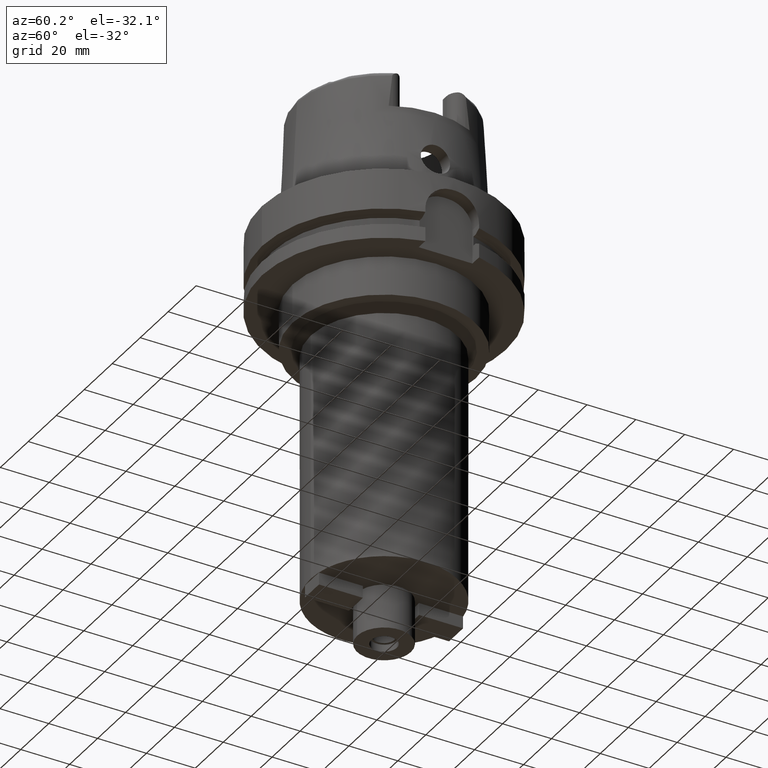
[diagram: clean part render]
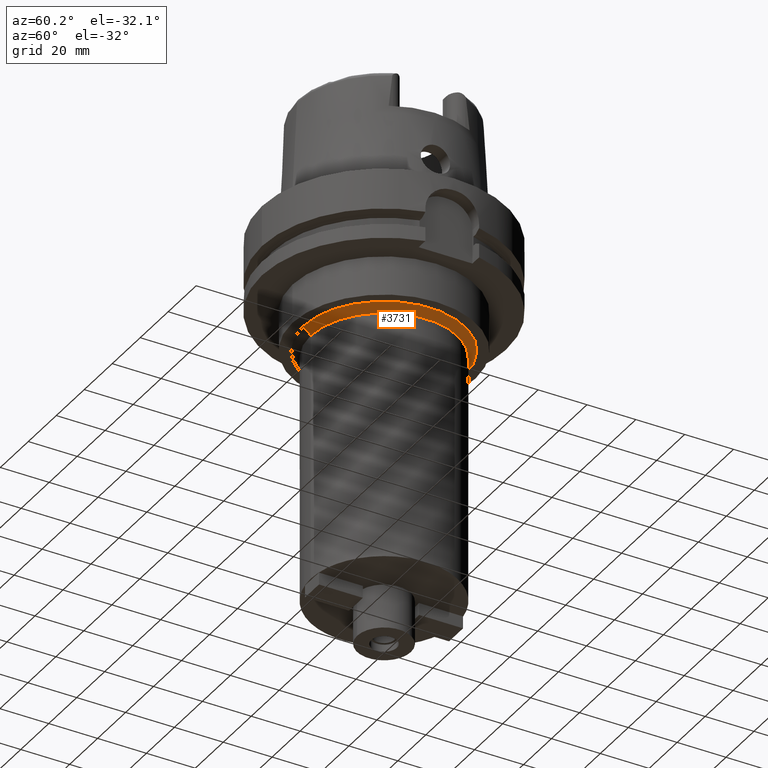
[diagram: same view with one face highlighted and labeled with its STEP entity id]
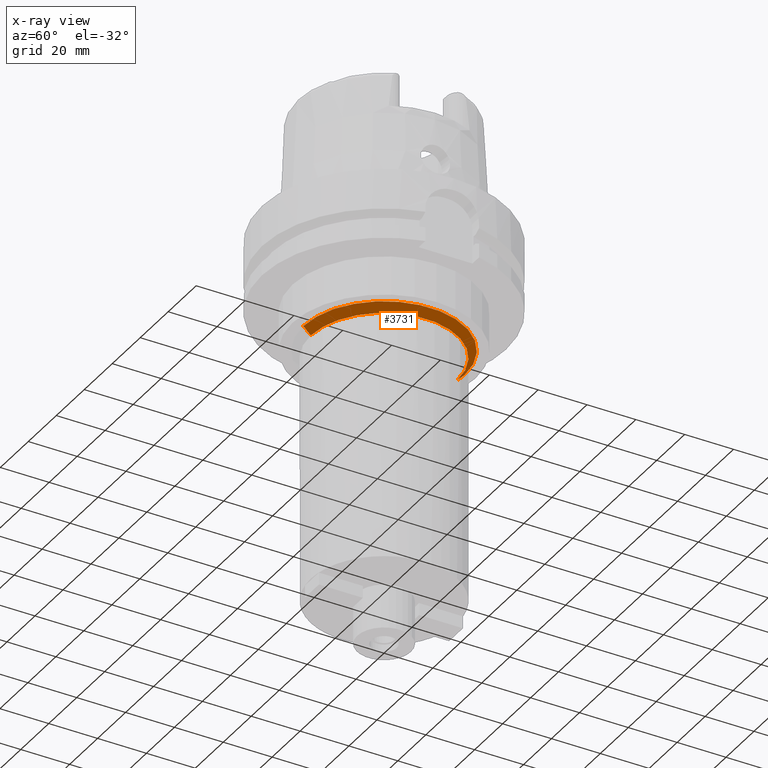
[diagram: x-ray of the same camera — body ghosted, the highlighted face saturated]
A machine part, auxiliary view. The second image highlights one B-rep face of the part: STEP entity #3731.
The next image is the same camera in x-ray: the body ghosted, the highlighted face saturated — about 0% of this face is hidden behind the body in this view.
In plain terms, the highlighted conical surface has half-angle 45 deg.
Its self-contained STEP definition (entity closure, byte-faithful):
#1209=DIRECTION('',(0.E0,7.071067811865E-1,-7.071067811865E-1));
#1210=VECTOR('',#1209,4.242640687119E0);
#1211=CARTESIAN_POINT('',(0.E0,-3.3E1,-4.5E1));
#1212=LINE('',#1211,#1210);
#1224=DIRECTION('',(0.E0,-7.071067811865E-1,-7.071067811865E-1));
#1225=VECTOR('',#1224,4.242640687119E0);
#1226=CARTESIAN_POINT('',(0.E0,3.3E1,-4.5E1));
#1227=LINE('',#1226,#1225);
#1231=CARTESIAN_POINT('',(0.E0,0.E0,-4.8E1));
#1232=DIRECTION('',(0.E0,0.E0,-1.E0));
#1233=DIRECTION('',(0.E0,1.E0,0.E0));
#1234=AXIS2_PLACEMENT_3D('',#1231,#1232,#1233);
#1263=CARTESIAN_POINT('',(0.E0,0.E0,-4.5E1));
#1264=DIRECTION('',(0.E0,0.E0,-1.E0));
#1265=DIRECTION('',(0.E0,1.E0,0.E0));
#1266=AXIS2_PLACEMENT_3D('',#1263,#1264,#1265);
#2637=CARTESIAN_POINT('',(0.E0,3.E1,-4.8E1));
#2638=VERTEX_POINT('',#2637);
#2639=CARTESIAN_POINT('',(0.E0,-3.E1,-4.8E1));
#2640=VERTEX_POINT('',#2639);
#2641=CARTESIAN_POINT('',(0.E0,3.3E1,-4.5E1));
#2642=VERTEX_POINT('',#2641);
#2643=CARTESIAN_POINT('',(0.E0,-3.3E1,-4.5E1));
#2644=VERTEX_POINT('',#2643);
#3719=CARTESIAN_POINT('',(0.E0,0.E0,-4.65E1));
#3720=DIRECTION('',(0.E0,0.E0,1.E0));
#3721=DIRECTION('',(0.E0,1.E0,0.E0));
#3722=AXIS2_PLACEMENT_3D('',#3719,#3720,#3721);
#3723=CONICAL_SURFACE('',#3722,3.15E1,4.5E1);
#3724=ORIENTED_EDGE('',*,*,#3709,.T.);
#3725=ORIENTED_EDGE('',*,*,#3686,.T.);
#3726=ORIENTED_EDGE('',*,*,#3713,.F.);
#3728=ORIENTED_EDGE('',*,*,#3727,.F.);
#3729=EDGE_LOOP('',(#3724,#3725,#3726,#3728));
#3730=FACE_OUTER_BOUND('',#3729,.F.);
#1235=CIRCLE('',#1234,3.E1);
#1267=CIRCLE('',#1266,3.3E1);
#3686=EDGE_CURVE('',#2638,#2640,#1235,.T.);
#3709=EDGE_CURVE('',#2642,#2638,#1227,.T.);
#3713=EDGE_CURVE('',#2644,#2640,#1212,.T.);
#3727=EDGE_CURVE('',#2642,#2644,#1267,.T.);
#3731=ADVANCED_FACE('',(#3730),#3723,.T.);